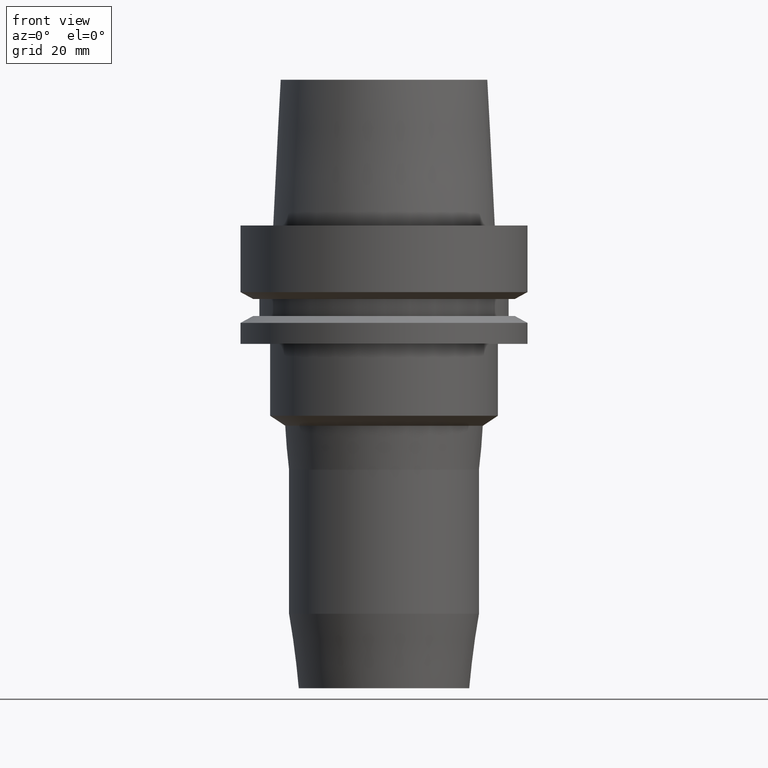
[diagram: clean part render]
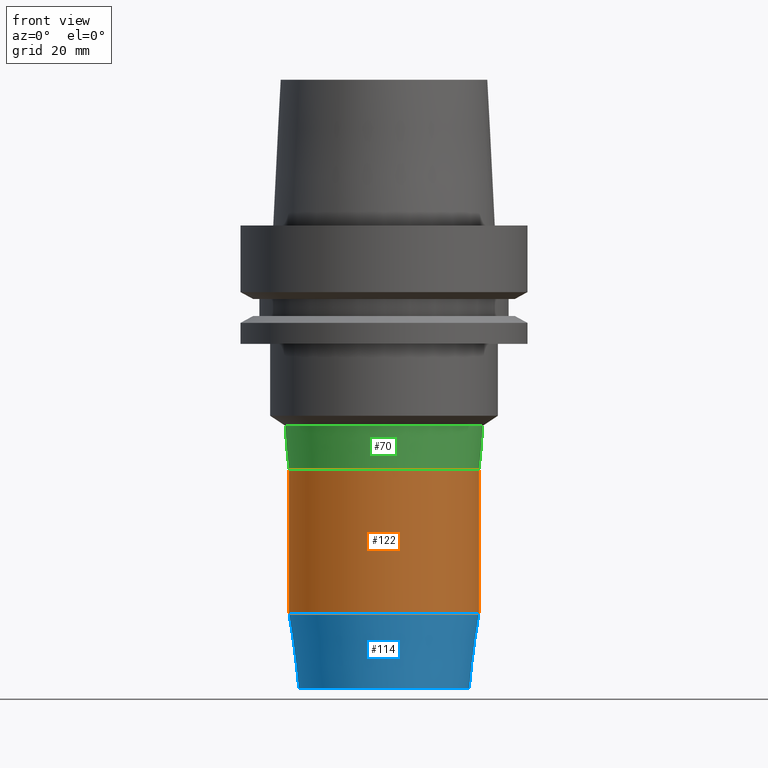
[diagram: same view with three faces highlighted in distinct colors, each labeled with its STEP entity id]
A machine part, front view with three faces highlighted in distinct colors.
Their STEP definitions:

[orange] entity #122 — the highlighted cylindrical surface (bore or boss wall) has radius 21 mm, axis along (0, 0, -1).
#79=EDGE_CURVE('Unnamed[1]',#192,#192,#193,.T.);
#119=EDGE_CURVE('Unnamed[1]',#254,#254,#255,.T.);
#122=ADVANCED_FACE('Unnamed[1]',(#258,#259),#260,.T.);
#192=VERTEX_POINT('',#340);
#193=CIRCLE('',#341,20.9999999999997);
#254=VERTEX_POINT('',#418);
#255=CIRCLE('',#419,20.9999999999997);
#258=FACE_BOUND('',#423,.T.);
#259=FACE_BOUND('',#424,.T.);
#260=CYLINDRICAL_SURFACE('',#425,20.9999999999997);
#340=CARTESIAN_POINT('',(5.21975081966552E-015,20.9999999999997,-85.2449999999954));
#341=AXIS2_PLACEMENT_3D('',#501,#502,#503);
#418=CARTESIAN_POINT('',(3.28205342171507E-015,20.9999999999997,-53.6000000000028));
#419=AXIS2_PLACEMENT_3D('',#571,#572,#573);
#423=EDGE_LOOP('',(#575));
#424=EDGE_LOOP('',(#576));
#425=AXIS2_PLACEMENT_3D('',#577,#578,#579);
#501=CARTESIAN_POINT('',(5.21975081966552E-015,1.0439501639331E-014,-85.2449999999954));
#502=DIRECTION('',(6.12323399573677E-017,1.22464679914735E-016,-1.0));
#503=DIRECTION('',(-1.23259516440783E-032,1.0,1.22464679914735E-016));
#571=CARTESIAN_POINT('',(3.28205342171508E-015,6.56410684343015E-015,-53.6000000000028));
#572=DIRECTION('',(6.12323399573677E-017,1.22464679914735E-016,-1.0));
#573=DIRECTION('',(-1.23259516440783E-032,1.0,1.22464679914735E-016));
#575=ORIENTED_EDGE('',*,*,#79,.F.);
#576=ORIENTED_EDGE('',*,*,#119,.T.);
#577=CARTESIAN_POINT('',(4.2509021206903E-015,8.5018042413806E-015,-69.4224999999991));
#578=DIRECTION('',(6.12323399573677E-017,1.22464679914735E-016,-1.0));
#579=DIRECTION('',(-1.23259516440783E-032,1.0,1.22464679914735E-016));

[blue] entity #114 — the highlighted conical surface has half-angle 7.5 deg.
#79=EDGE_CURVE('Unnamed[1]',#192,#192,#193,.T.);
#106=EDGE_CURVE('Unnamed[1]',#233,#233,#234,.T.);
#114=ADVANCED_FACE('Unnamed[1]',(#245,#246),#247,.T.);
#192=VERTEX_POINT('',#340);
#193=CIRCLE('',#341,20.9999999999997);
#233=VERTEX_POINT('',#392);
#234=CIRCLE('',#393,18.8468234019571);
#245=FACE_BOUND('',#407,.T.);
#246=FACE_BOUND('',#408,.T.);
#247=CONICAL_SURFACE('',#409,19.9234117009784,0.13089969389958);
#340=CARTESIAN_POINT('',(5.21975081966552E-015,20.9999999999997,-85.2449999999954));
#341=AXIS2_PLACEMENT_3D('',#501,#502,#503);
#392=CARTESIAN_POINT('',(6.22120573966854E-015,18.8468234019571,-101.6));
#393=AXIS2_PLACEMENT_3D('',#547,#548,#549);
#407=EDGE_LOOP('',(#560));
#408=EDGE_LOOP('',(#561));
#409=AXIS2_PLACEMENT_3D('',#562,#563,#564);
#501=CARTESIAN_POINT('',(5.21975081966552E-015,1.0439501639331E-014,-85.2449999999954));
#502=DIRECTION('',(6.12323399573677E-017,1.22464679914735E-016,-1.0));
#503=DIRECTION('',(-1.23259516440783E-032,1.0,1.22464679914735E-016));
#547=CARTESIAN_POINT('',(6.22120573966854E-015,1.24424114793371E-014,-101.6));
#548=DIRECTION('',(6.12323399573677E-017,1.22464679914735E-016,-1.0));
#549=DIRECTION('',(-1.23259516440783E-032,1.0,1.22464679914735E-016));
#560=ORIENTED_EDGE('',*,*,#106,.F.);
#561=ORIENTED_EDGE('',*,*,#79,.T.);
#562=CARTESIAN_POINT('',(5.72047827966703E-015,1.14409565593341E-014,-93.4224999999976));
#563=DIRECTION('',(-6.12323399573677E-017,-1.22464679914735E-016,1.0));
#564=DIRECTION('',(-1.23259516440783E-032,1.0,1.22464679914735E-016));

[green] entity #70 — the highlighted conical surface has half-angle 5 deg.
#70=ADVANCED_FACE('Unnamed[1]',(#177,#178),#179,.T.);
#83=EDGE_CURVE('Unnamed[1]',#198,#198,#199,.T.);
#119=EDGE_CURVE('Unnamed[1]',#254,#254,#255,.T.);
#177=FACE_BOUND('',#321,.T.);
#178=FACE_BOUND('',#322,.T.);
#179=CONICAL_SURFACE('',#323,21.4210001647443,0.0872664625997202);
#198=VERTEX_POINT('',#348);
#199=CIRCLE('',#349,21.8420003294889);
#254=VERTEX_POINT('',#418);
#255=CIRCLE('',#419,20.9999999999997);
#321=EDGE_LOOP('',(#484));
#322=EDGE_LOOP('',(#485));
#323=AXIS2_PLACEMENT_3D('',#486,#487,#488);
#348=CARTESIAN_POINT('',(2.69274678081274E-015,21.8420003294889,-43.9758921949992));
#349=AXIS2_PLACEMENT_3D('',#507,#508,#509);
#418=CARTESIAN_POINT('',(3.28205342171507E-015,20.9999999999997,-53.6000000000028));
#419=AXIS2_PLACEMENT_3D('',#571,#572,#573);
#484=ORIENTED_EDGE('',*,*,#119,.F.);
#485=ORIENTED_EDGE('',*,*,#83,.T.);
#486=CARTESIAN_POINT('',(2.98740010126391E-015,5.97480020252781E-015,-48.787946097501));
#487=DIRECTION('',(-6.12323399573677E-017,-1.22464679914735E-016,1.0));
#488=DIRECTION('',(-1.23259516440783E-032,1.0,1.22464679914735E-016));
#507=CARTESIAN_POINT('',(2.69274678081274E-015,5.38549356162548E-015,-43.9758921949992));
#508=DIRECTION('',(6.12323399573677E-017,1.22464679914735E-016,-1.0));
#509=DIRECTION('',(-1.23259516440783E-032,1.0,1.22464679914735E-016));
#571=CARTESIAN_POINT('',(3.28205342171508E-015,6.56410684343015E-015,-53.6000000000028));
#572=DIRECTION('',(6.12323399573677E-017,1.22464679914735E-016,-1.0));
#573=DIRECTION('',(-1.23259516440783E-032,1.0,1.22464679914735E-016));